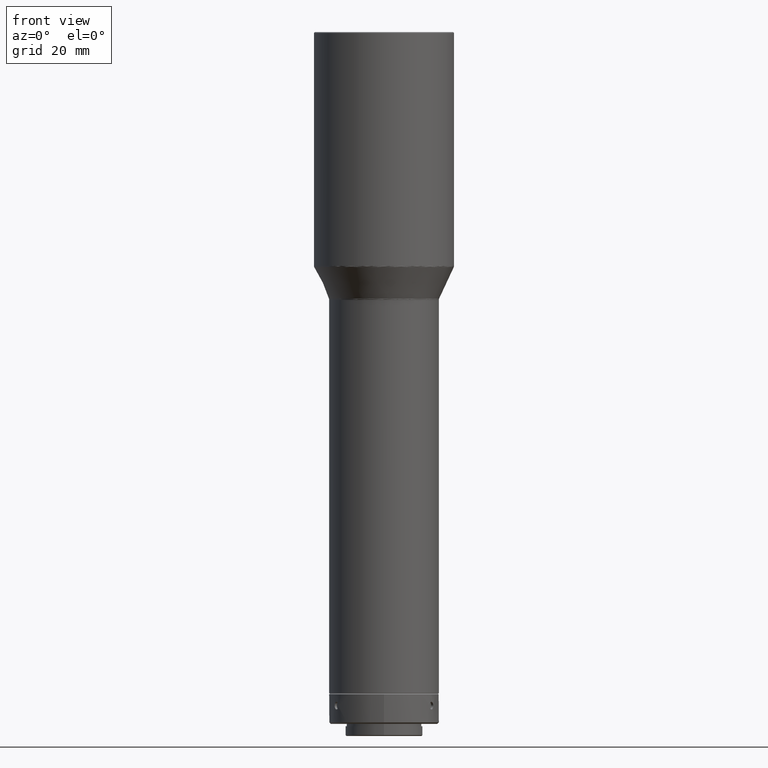
[diagram: clean part render]
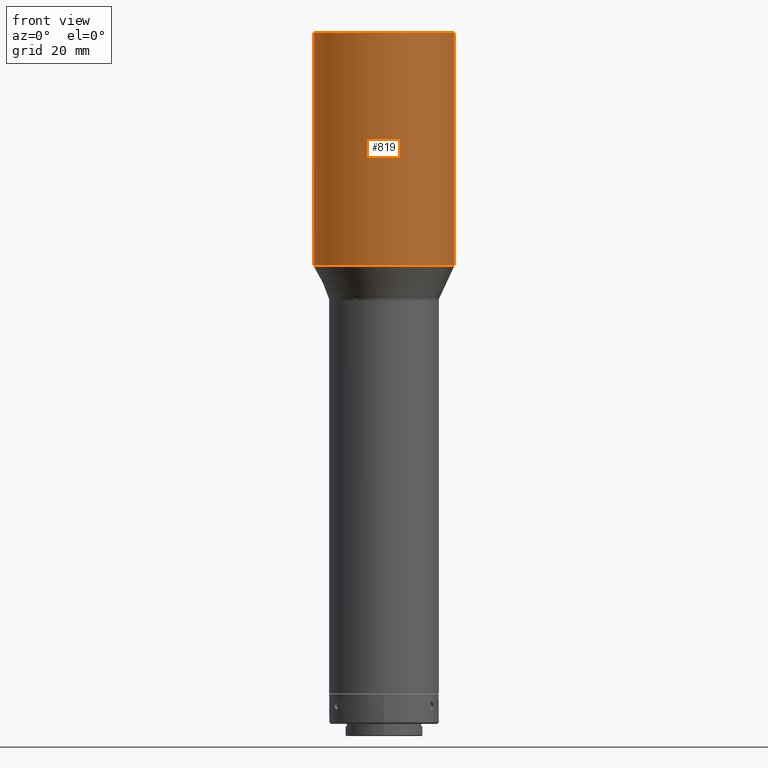
[diagram: same view with one face highlighted and labeled with its STEP entity id]
A machine part, front view. The second image highlights one B-rep face of the part: STEP entity #819.
In plain terms, the highlighted cylindrical surface (bore or boss wall) has radius 23 mm, axis along (0, 0, 1).
Its self-contained STEP definition (entity closure, byte-faithful):
#42 = DIRECTION ( 'NONE',  ( -1.000000000000000000, -5.551115123125783935E-17, 0.000000000000000000 ) ) ;
#53 = FACE_OUTER_BOUND ( 'NONE', #731, .T. ) ;
#82 = CARTESIAN_POINT ( 'NONE',  ( -23.00000000000000000, 7.858894340250382922E-17, -532.7783053373569828 ) ) ;
#95 = AXIS2_PLACEMENT_3D ( 'NONE', #788, #179, #515 ) ;
#135 = ORIENTED_EDGE ( 'NONE', *, *, #317, .F. ) ;
#144 = VERTEX_POINT ( 'NONE', #82 ) ;
#179 = DIRECTION ( 'NONE',  ( 0.000000000000000000, 0.000000000000000000, 1.000000000000000000 ) ) ;
#199 = DIRECTION ( 'NONE',  ( 1.000000000000000000, 0.000000000000000000, 0.000000000000000000 ) ) ;
#239 = DIRECTION ( 'NONE',  ( 0.000000000000000000, 0.000000000000000000, -1.000000000000000000 ) ) ;
#317 = EDGE_CURVE ( 'NONE', #144, #144, #389, .T. ) ;
#389 = CIRCLE ( 'NONE', #532, 23.00000000000000000 ) ;
#392 = ORIENTED_EDGE ( 'NONE', *, *, #418, .T. ) ;
#407 = EDGE_LOOP ( 'NONE', ( #392 ) ) ;
#418 = EDGE_CURVE ( 'NONE', #816, #816, #739, .T. ) ;
#476 = AXIS2_PLACEMENT_3D ( 'NONE', #531, #538, #199 ) ;
#487 = CARTESIAN_POINT ( 'NONE',  ( 22.99999999999998224, 1.355345421721433986E-15, -456.3000000000000114 ) ) ;
#515 = DIRECTION ( 'NONE',  ( 1.000000000000000000, 0.000000000000000000, 0.000000000000000000 ) ) ;
#531 = CARTESIAN_POINT ( 'NONE',  ( -7.523678467577149378E-32, 1.355345421721433986E-15, -456.3000000000000114 ) ) ;
#532 = AXIS2_PLACEMENT_3D ( 'NONE', #630, #239, #42 ) ;
#538 = DIRECTION ( 'NONE',  ( -0.000000000000000000, -0.000000000000000000, -1.000000000000000000 ) ) ;
#591 = CYLINDRICAL_SURFACE ( 'NONE', #95, 22.99999999999998224 ) ;
#596 = FACE_OUTER_BOUND ( 'NONE', #407, .T. ) ;
#630 = CARTESIAN_POINT ( 'NONE',  ( -7.523678467577149378E-32, 1.355345421721433986E-15, -532.7783053373569828 ) ) ;
#731 = EDGE_LOOP ( 'NONE', ( #135 ) ) ;
#739 = CIRCLE ( 'NONE', #476, 22.99999999999998224 ) ;
#788 = CARTESIAN_POINT ( 'NONE',  ( -7.523678467577149378E-32, 1.355345421721433986E-15, -456.0000000000000000 ) ) ;
#816 = VERTEX_POINT ( 'NONE', #487 ) ;
#819 = ADVANCED_FACE ( 'NONE', ( #53, #596 ), #591, .T. ) ;